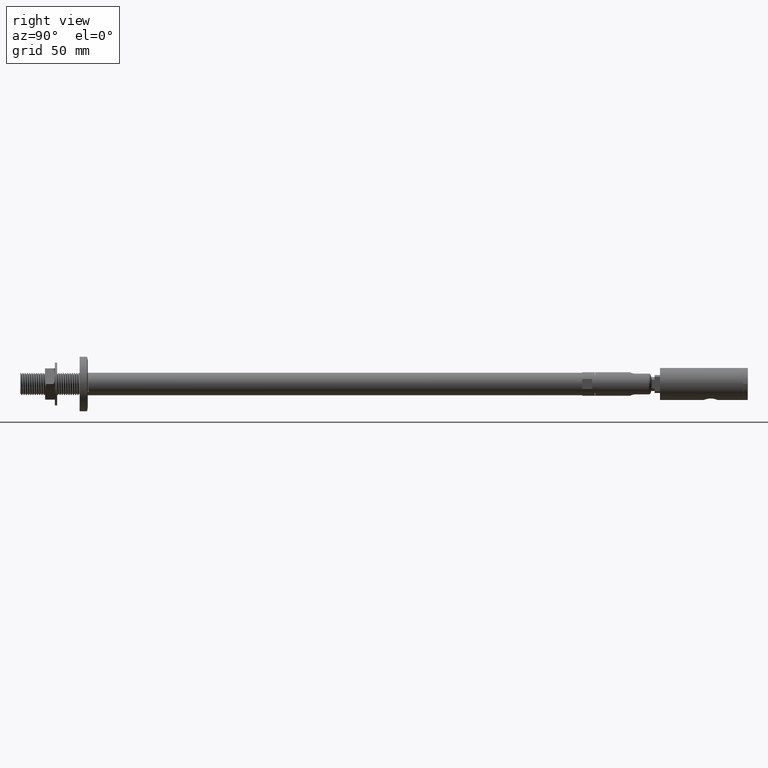
[diagram: clean part render]
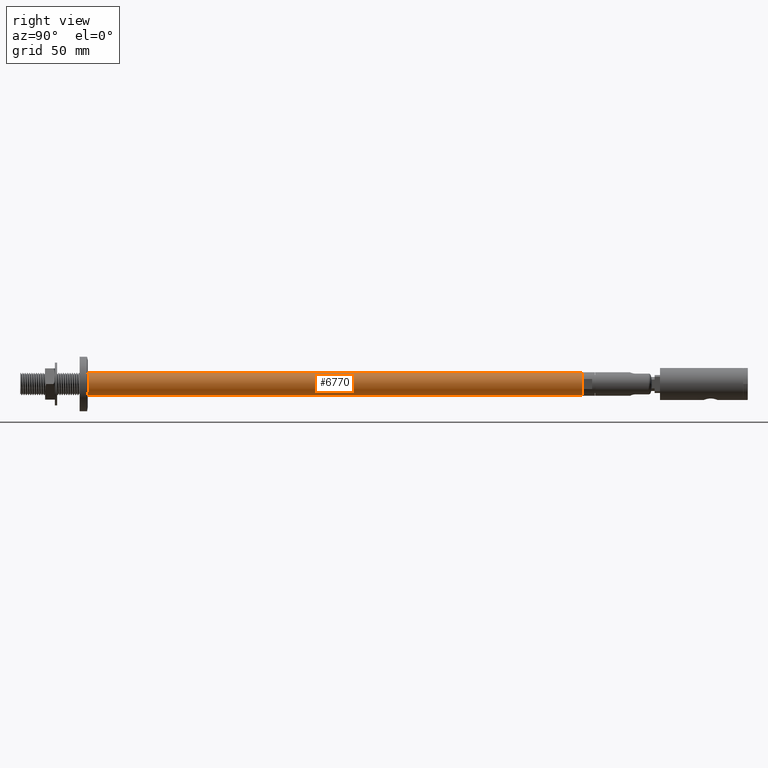
[diagram: same view with one face highlighted and labeled with its STEP entity id]
A machine part, right view. The second image highlights one B-rep face of the part: STEP entity #6770.
In plain terms, the highlighted cylindrical surface (edge-blend (fillet) strip) has radius 5 mm, axis along (-0, -1, -0).
Its self-contained STEP definition (entity closure, byte-faithful):
#256 = CARTESIAN_POINT ( 'NONE',  ( 0.0007824315849736246517, 30.10041918680575534, 4.999999938780081088 ) ) ;
#270 = CARTESIAN_POINT ( 'NONE',  ( -3.834649683052532928E-15, 29.21752652639968062, 4.999999999999998224 ) ) ;
#1030 = CARTESIAN_POINT ( 'NONE',  ( -4.026983479311724517E-14, 29.10039557407870703, 4.999999999999998224 ) ) ;
#1105 = AXIS2_PLACEMENT_3D ( 'NONE', #15510, #7614, #13974 ) ;
#1301 = LINE ( 'NONE', #10382, #17932 ) ;
#1785 = CARTESIAN_POINT ( 'NONE',  ( 2.071850218092327722, 30.16291918680575179, 4.999675845005957520 ) ) ;
#1842 = CARTESIAN_POINT ( 'NONE',  ( 3.536087125323266633, 30.22541918680575534, 3.534980599964169468 ) ) ;
#2165 = EDGE_CURVE ( 'NONE', #12908, #6245, #16985, .T. ) ;
#2382 = CARTESIAN_POINT ( 'NONE',  ( 2.070609488905801321, 29.53790535568693798, -4.999999999999984013 ) ) ;
#2606 = CARTESIAN_POINT ( 'NONE',  ( 4.999675845005957520, 29.41291918680576245, -2.071850218092327278 ) ) ;
#3020 = VERTEX_POINT ( 'NONE', #5392 ) ;
#3040 = CARTESIAN_POINT ( 'NONE',  ( 4.987963335790834840, 29.53089843530447567, -2.099891340558274422 ) ) ;
#3109 = CARTESIAN_POINT ( 'NONE',  ( 5.011870105711236256, 29.40589843530447922, 2.042175292383904495 ) ) ;
#3168 = CARTESIAN_POINT ( 'NONE',  ( -3.834649683052532928E-15, 29.21752652639968062, 4.999999999999998224 ) ) ;
#3336 = FACE_OUTER_BOUND ( 'NONE', #4210, .T. ) ;
#3481 = VERTEX_POINT ( 'NONE', #19930 ) ;
#3594 = DIRECTION ( 'NONE',  ( 0.000000000000000000, 0.000000000000000000, -1.000000000000000000 ) ) ;
#4209 = ORIENTED_EDGE ( 'NONE', *, *, #20606, .T. ) ;
#4210 = EDGE_LOOP ( 'NONE', ( #11614, #4333, #4209, #8652, #6153, #5884, #14931, #10305 ) ) ;
#4230 = VERTEX_POINT ( 'NONE', #17220 ) ;
#4333 = ORIENTED_EDGE ( 'NONE', *, *, #15860, .T. ) ;
#4810 = CARTESIAN_POINT ( 'NONE',  ( -4.029143480546926570E-14, 30.10039557407870348, 4.999999999999998224 ) ) ;
#4914 = CIRCLE ( 'NONE', #1105, 5.000000000000000000 ) ;
#4925 = CARTESIAN_POINT ( 'NONE',  ( 0.0003912157948616869826, 30.10040738082478029, 4.999999999999999112 ) ) ;
#5293 = CARTESIAN_POINT ( 'NONE',  ( 3.515069314087369445, 29.59339843530447567, -3.555880723134755339 ) ) ;
#5392 = CARTESIAN_POINT ( 'NONE',  ( 4.115914118402239374E-14, 29.60039557407870703, -4.999999999999997335 ) ) ;
#5569 = CARTESIAN_POINT ( 'NONE',  ( 3.521724924689746405, 29.88740251953550597, -3.549301500034632184 ) ) ;
#5884 = ORIENTED_EDGE ( 'NONE', *, *, #7100, .T. ) ;
#6082 =( BOUNDED_CURVE ( )  B_SPLINE_CURVE ( 2, ( #16492, #18091, #8777, #13548, #15231, #20168, #7262, #2606, #8714, #2382, #13477 ),
 .UNSPECIFIED., .F., .T. ) 
 B_SPLINE_CURVE_WITH_KNOTS ( ( 3, 2, 2, 2, 2, 3 ),
 ( 0.9395153046127198149, 0.9395161290322581182, 0.9435483870967742437, 0.9475806451612903691, 0.9516129032258064946, 0.9556443368707843167 ),
 .UNSPECIFIED. ) 
 CURVE ( )  GEOMETRIC_REPRESENTATION_ITEM ( )  RATIONAL_B_SPLINE_CURVE ( ( 0.9999688797844887844, 0.9999844367102357356, 1.000000000000000000, 0.9238795325112867385, 1.000000000000000000, 0.9238795325112867385, 1.000000000000000000, 0.9238795325112867385, 1.000000000000000000, 0.9238950958010510028, 0.9999688797844887844 ) ) 
 REPRESENTATION_ITEM ( '' )  );
#6153 = ORIENTED_EDGE ( 'NONE', *, *, #2165, .F. ) ;
#6241 = CARTESIAN_POINT ( 'NONE',  ( 2.099891340558274422, 29.28089843530447922, 4.987963335790833952 ) ) ;
#6245 = VERTEX_POINT ( 'NONE', #13359 ) ;
#6456 = EDGE_CURVE ( 'NONE', #17016, #3020, #6082, .T. ) ;
#6770 = ADVANCED_FACE ( 'NONE', ( #3336 ), #18514, .T. ) ;
#6967 = DIRECTION ( 'NONE',  ( -0.000000000000000000, -1.000000000000000000, -0.000000000000000000 ) ) ;
#7100 = EDGE_CURVE ( 'NONE', #12908, #17016, #9159, .T. ) ;
#7262 = CARTESIAN_POINT ( 'NONE',  ( 4.999999938780080200, 29.35041918680575534, -0.0007824315849731909708 ) ) ;
#7614 = DIRECTION ( 'NONE',  ( 0.000000000000000000, 1.000000000000000000, 0.000000000000000000 ) ) ;
#8029 = CARTESIAN_POINT ( 'NONE',  ( 4.999999938780080200, 30.35041918680575179, -0.0007824315849731909708 ) ) ;
#8197 =( BOUNDED_CURVE ( )  B_SPLINE_CURVE ( 3, ( #10030, #8552, #5569, #5293 ),
 .UNSPECIFIED., .F., .F. ) 
 B_SPLINE_CURVE_WITH_KNOTS ( ( 4, 4 ),
 ( 4.712545466702331431, 4.718160617246009991 ),
 .UNSPECIFIED. ) 
 CURVE ( )  GEOMETRIC_REPRESENTATION_ITEM ( )  RATIONAL_B_SPLINE_CURVE ( ( 1.000000000000000000, 0.9999973725087568655, 0.9999973725087568655, 1.000000000000000000 ) ) 
 REPRESENTATION_ITEM ( '' )  );
#8552 = CARTESIAN_POINT ( 'NONE',  ( 3.528362037420970321, 30.18141020920525364, -3.542703616761588403 ) ) ;
#8652 = ORIENTED_EDGE ( 'NONE', *, *, #18560, .T. ) ;
#8714 = CARTESIAN_POINT ( 'NONE',  ( 3.534980599964169468, 29.47541918680575890, -3.536087125323266633 ) ) ;
#8777 = CARTESIAN_POINT ( 'NONE',  ( 0.0007824315849736246517, 29.10041918680575890, 4.999999938780081088 ) ) ;
#9159 = LINE ( 'NONE', #14175, #15436 ) ;
#9434 = CARTESIAN_POINT ( 'NONE',  ( 0.02885802408718481094, 29.21839843530447567, 4.999916720751034660 ) ) ;
#10030 = CARTESIAN_POINT ( 'NONE',  ( 3.534980599964169468, 30.47541918680575534, -3.536087125323266633 ) ) ;
#10305 = ORIENTED_EDGE ( 'NONE', *, *, #14891, .F. ) ;
#10382 = CARTESIAN_POINT ( 'NONE',  ( 6.123233995736766282E-16, 250.0000000000000000, 5.000000000000000000 ) ) ;
#10968 = CARTESIAN_POINT ( 'NONE',  ( 0.000000000000000000, 250.0000000000000000, -5.000000000000000000 ) ) ;
#11614 = ORIENTED_EDGE ( 'NONE', *, *, #18040, .F. ) ;
#11634 = DIRECTION ( 'NONE',  ( -0.000000000000000000, -1.000000000000000000, -0.000000000000000000 ) ) ;
#11922 = VERTEX_POINT ( 'NONE', #10968 ) ;
#11950 = LINE ( 'NONE', #15940, #14438 ) ;
#12908 = VERTEX_POINT ( 'NONE', #270 ) ;
#12990 = CARTESIAN_POINT ( 'NONE',  ( 5.000324032554206433, 30.28791918680575534, 2.070285354922381860 ) ) ;
#13359 = CARTESIAN_POINT ( 'NONE',  ( 3.515069314087369445, 29.59339843530447567, -3.555880723134755339 ) ) ;
#13477 = CARTESIAN_POINT ( 'NONE',  ( 4.115914118402239374E-14, 29.60039557407870703, -4.999999999999997335 ) ) ;
#13548 = CARTESIAN_POINT ( 'NONE',  ( 2.071850218092327722, 29.16291918680576245, 4.999675845005957520 ) ) ;
#13974 = DIRECTION ( 'NONE',  ( 0.000000000000000000, 0.000000000000000000, 1.000000000000000000 ) ) ;
#14175 = CARTESIAN_POINT ( 'NONE',  ( 6.123233995736766282E-16, 250.0000000000000000, 5.000000000000000000 ) ) ;
#14438 = VECTOR ( 'NONE', #17341, 1000.000000000000000 ) ;
#14452 = CARTESIAN_POINT ( 'NONE',  ( 4.999675845005957520, 30.41291918680575534, -2.071850218092327278 ) ) ;
#14891 = EDGE_CURVE ( 'NONE', #11922, #3020, #11950, .T. ) ;
#14931 = ORIENTED_EDGE ( 'NONE', *, *, #6456, .T. ) ;
#15231 = CARTESIAN_POINT ( 'NONE',  ( 3.536087125323266633, 29.22541918680575890, 3.534980599964169468 ) ) ;
#15436 = VECTOR ( 'NONE', #18878, 1000.000000000000000 ) ;
#15510 = CARTESIAN_POINT ( 'NONE',  ( 0.000000000000000000, 250.0000000000000000, 0.000000000000000000 ) ) ;
#15813 = CARTESIAN_POINT ( 'NONE',  ( 3.515069314087369445, 29.59339843530447567, -3.555880723134755339 ) ) ;
#15860 = EDGE_CURVE ( 'NONE', #3481, #20005, #1301, .T. ) ;
#15940 = CARTESIAN_POINT ( 'NONE',  ( 0.000000000000000000, 250.0000000000000000, -5.000000000000000000 ) ) ;
#16134 = CARTESIAN_POINT ( 'NONE',  ( 3.534980599964169468, 30.47541918680575534, -3.536087125323266633 ) ) ;
#16201 = CARTESIAN_POINT ( 'NONE',  ( -4.029143480546926570E-14, 30.10039557407870348, 4.999999999999998224 ) ) ;
#16288 =( BOUNDED_CURVE ( )  B_SPLINE_CURVE ( 2, ( #16201, #4925, #256, #1785, #1842, #12990, #8029, #14452, #16134 ),
 .UNSPECIFIED., .F., .F. ) 
 B_SPLINE_CURVE_WITH_KNOTS ( ( 3, 2, 2, 2, 3 ),
 ( 0.9717733691288488185, 0.9717741935483871218, 0.9758064516129032473, 0.9798387096774193727, 0.9838709677419354982 ),
 .UNSPECIFIED. ) 
 CURVE ( )  GEOMETRIC_REPRESENTATION_ITEM ( )  RATIONAL_B_SPLINE_CURVE ( ( 0.9999688797844887844, 0.9999844367102357356, 1.000000000000000000, 0.9238795325112867385, 1.000000000000000000, 0.9238795325112867385, 1.000000000000000000, 0.9238795325112867385, 1.000000000000000000 ) ) 
 REPRESENTATION_ITEM ( '' )  );
#16492 = CARTESIAN_POINT ( 'NONE',  ( -4.026983479311724517E-14, 29.10039557407870703, 4.999999999999998224 ) ) ;
#16985 =( BOUNDED_CURVE ( )  B_SPLINE_CURVE ( 2, ( #3168, #17279, #9434, #6241, #18827, #3109, #20529, #3040, #15813 ),
 .UNSPECIFIED., .F., .T. ) 
 B_SPLINE_CURVE_WITH_KNOTS ( ( 3, 2, 2, 2, 3 ),
 ( 0.9717438036224335107, 0.9717741935483871218, 0.9758064516129032473, 0.9798387096774193727, 0.9838709677419354982 ),
 .UNSPECIFIED. ) 
 CURVE ( )  GEOMETRIC_REPRESENTATION_ITEM ( )  RATIONAL_B_SPLINE_CURVE ( ( 0.9988612530662484001, 0.9994263027481069539, 1.000000000000000000, 0.9238795325112867385, 1.000000000000000000, 0.9238795325112867385, 1.000000000000000000, 0.9238795325112867385, 1.000000000000000000 ) ) 
 REPRESENTATION_ITEM ( '' )  );
#17016 = VERTEX_POINT ( 'NONE', #1030 ) ;
#17220 = CARTESIAN_POINT ( 'NONE',  ( 3.534980599964169468, 30.47541918680575534, -3.536087125323266633 ) ) ;
#17279 = CARTESIAN_POINT ( 'NONE',  ( 0.01442913220831985345, 29.21796299772109506, 4.999999999999999112 ) ) ;
#17341 = DIRECTION ( 'NONE',  ( -0.000000000000000000, -1.000000000000000000, -0.000000000000000000 ) ) ;
#17916 = CARTESIAN_POINT ( 'NONE',  ( 0.000000000000000000, 250.0000000000000000, 0.000000000000000000 ) ) ;
#17932 = VECTOR ( 'NONE', #6967, 1000.000000000000000 ) ;
#18040 = EDGE_CURVE ( 'NONE', #3481, #11922, #4914, .T. ) ;
#18091 = CARTESIAN_POINT ( 'NONE',  ( 0.0003912157948616869826, 29.10040738082478384, 4.999999999999999112 ) ) ;
#18514 = CYLINDRICAL_SURFACE ( 'NONE', #19220, 5.000000000000000000 ) ;
#18560 = EDGE_CURVE ( 'NONE', #4230, #6245, #8197, .T. ) ;
#18827 = CARTESIAN_POINT ( 'NONE',  ( 3.555880723134755339, 29.34339843530447567, 3.515069314087369889 ) ) ;
#18878 = DIRECTION ( 'NONE',  ( -0.000000000000000000, -1.000000000000000000, -0.000000000000000000 ) ) ;
#19220 = AXIS2_PLACEMENT_3D ( 'NONE', #17916, #11634, #3594 ) ;
#19930 = CARTESIAN_POINT ( 'NONE',  ( 6.123233995736766282E-16, 250.0000000000000000, 5.000000000000000000 ) ) ;
#20005 = VERTEX_POINT ( 'NONE', #4810 ) ;
#20168 = CARTESIAN_POINT ( 'NONE',  ( 5.000324032554206433, 29.28791918680575890, 2.070285354922381860 ) ) ;
#20529 = CARTESIAN_POINT ( 'NONE',  ( 4.999916720751033772, 29.46839843530447567, -0.02885802408718437725 ) ) ;
#20606 = EDGE_CURVE ( 'NONE', #20005, #4230, #16288, .T. ) ;